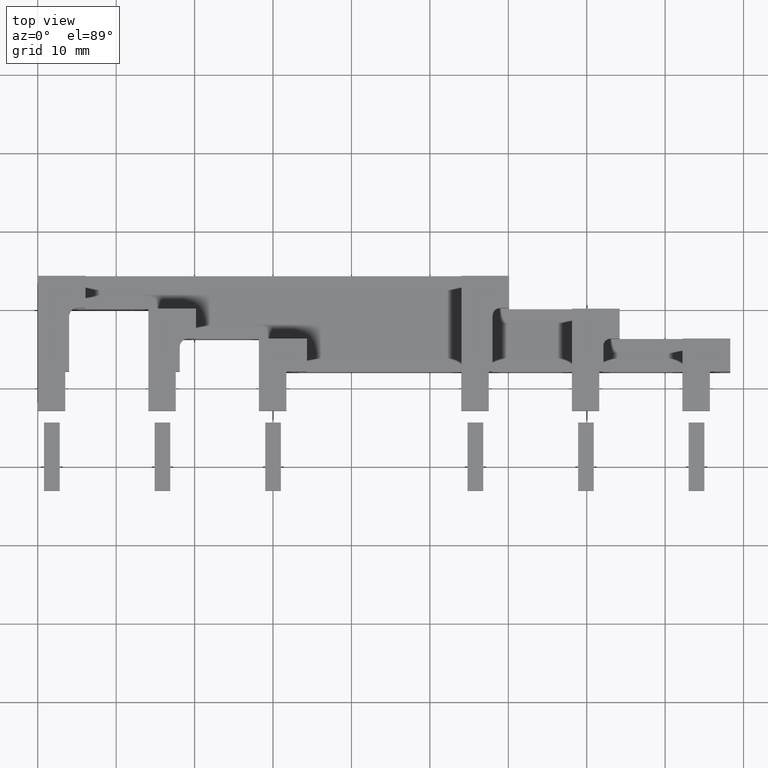
[diagram: clean part render]
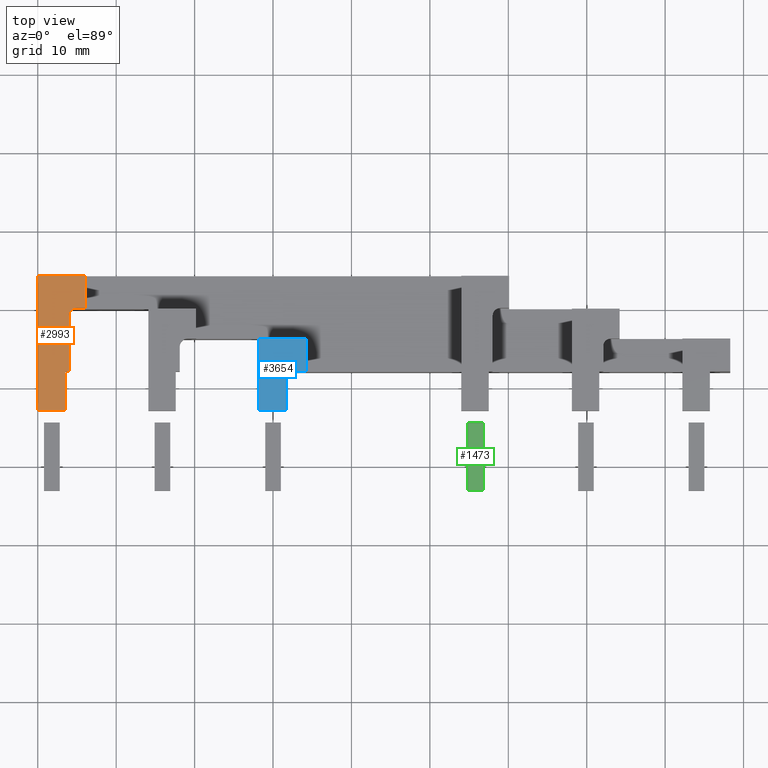
[diagram: same view with three faces highlighted in distinct colors, each labeled with its STEP entity id]
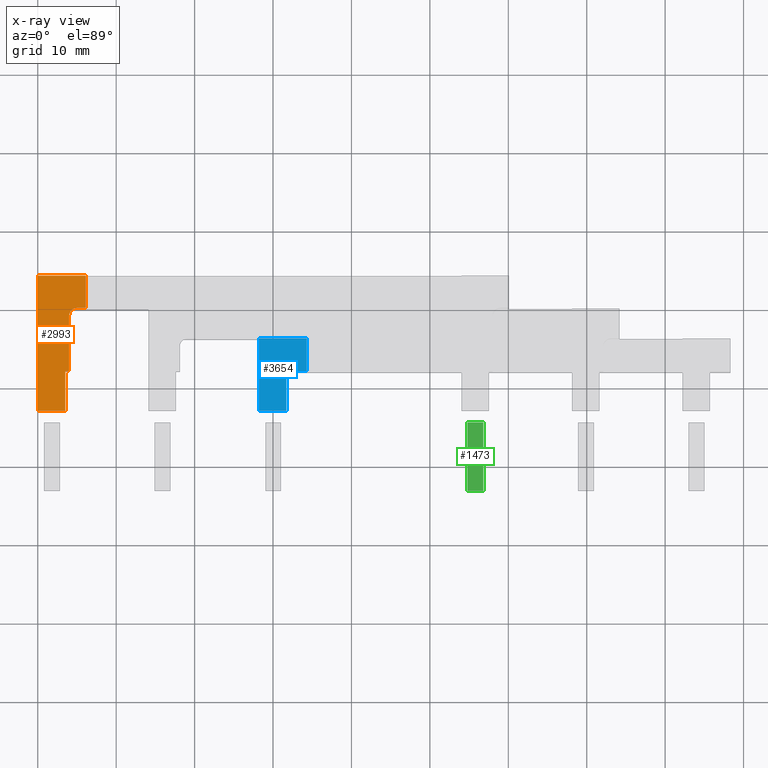
[diagram: x-ray of the same camera — body ghosted, the three highlighted faces saturated]
A machine part, top view with three faces highlighted in distinct colors.
The next image is the same camera in x-ray (body ghosted, the three faces saturated) — at least one of them is partly hidden behind the body in this view.
Their STEP definitions:

[orange] entity #2993 — the highlighted planar face has unit normal (0, 0, 1).
#2733=CARTESIAN_POINT('',(4.000000000000316,-7.999999999992044,108.09999999999218));
#2734=VERTEX_POINT('',#2733);
#2735=CARTESIAN_POINT('',(3.500000000000316,-7.999999999992285,108.09999999999215));
#2736=VERTEX_POINT('',#2735);
#2737=CARTESIAN_POINT('',(4.000000000000316,-7.999999999992047,108.09999999999214));
#2738=DIRECTION('',(-1.0,-4.760636E-013,2.842171E-014));
#2739=VECTOR('',#2738,0.5);
#2740=LINE('',#2737,#2739);
#2741=EDGE_CURVE('',#2734,#2736,#2740,.T.);
#2773=CARTESIAN_POINT('',(3.500000000000763,-12.999999999992003,108.09999999999218));
#2774=VERTEX_POINT('',#2773);
#2775=CARTESIAN_POINT('',(3.500000000000316,-7.999999999992286,108.09999999999218));
#2776=DIRECTION('',(0.0,-1.0,0.0));
#2777=VECTOR('',#2776,4.999999999999717);
#2778=LINE('',#2775,#2777);
#2779=EDGE_CURVE('',#2736,#2774,#2778,.T.);
#2804=CARTESIAN_POINT('',(3.090890E-013,-12.999999999991832,108.09999999999224));
#2805=VERTEX_POINT('',#2804);
#2806=CARTESIAN_POINT('',(3.500000000000766,-12.999999999991987,108.09999999999216));
#2807=DIRECTION('',(-1.0,0.0,0.0));
#2808=VECTOR('',#2807,3.500000000000457);
#2809=LINE('',#2806,#2808);
#2810=EDGE_CURVE('',#2774,#2805,#2809,.T.);
#2835=CARTESIAN_POINT('',(1.744997E-013,4.200000000007734,108.09999999999222));
#2836=VERTEX_POINT('',#2835);
#2837=CARTESIAN_POINT('',(3.082675E-013,-12.999999999991861,108.09999999999222));
#2838=DIRECTION('',(0.0,1.0,0.0));
#2839=VECTOR('',#2838,17.199999999999594);
#2840=LINE('',#2837,#2839);
#2841=EDGE_CURVE('',#2805,#2836,#2840,.T.);
#2866=CARTESIAN_POINT('',(6.099999999999845,4.200000000007862,108.09999999999209));
#2867=VERTEX_POINT('',#2866);
#2868=CARTESIAN_POINT('',(6.099999999999942,0.099999999999568,108.09999999999212));
#2869=VERTEX_POINT('',#2868);
#2870=CARTESIAN_POINT('',(6.099999999999842,4.200000000007877,108.09999999999212));
#2871=DIRECTION('',(0.0,-1.0,0.0));
#2872=VECTOR('',#2871,4.100000000008309);
#2873=LINE('',#2870,#2872);
#2874=EDGE_CURVE('',#2867,#2869,#2873,.T.);
#2897=CARTESIAN_POINT('',(5.000000000000147,0.09999999999954,108.09999999999215));
#2898=VERTEX_POINT('',#2897);
#2899=CARTESIAN_POINT('',(6.099999999999943,0.099999999999563,108.09999999999212));
#2900=DIRECTION('',(-1.0,0.0,0.0));
#2901=VECTOR('',#2900,1.099999999999796);
#2902=LINE('',#2899,#2901);
#2903=EDGE_CURVE('',#2869,#2898,#2902,.T.);
#2921=CARTESIAN_POINT('',(4.000000000000167,-0.900000000000461,108.09999999999218));
#2922=VERTEX_POINT('',#2921);
#2923=CARTESIAN_POINT('',(5.000000000000167,-0.900000000000461,108.09999999999214));
#2924=DIRECTION('',(1.068686E-014,-1.068686E-014,1.0));
#2925=DIRECTION('',(-0.707106781186552,0.707106781186543,1.511351E-014));
#2926=AXIS2_PLACEMENT_3D('',#2923,#2924,#2925);
#2927=CIRCLE('',#2926,1.000000000000001);
#2928=EDGE_CURVE('',#2898,#2922,#2927,.T.);
#2955=CARTESIAN_POINT('',(4.000000000000167,-0.90000000000046,108.09999999999218));
#2956=DIRECTION('',(0.0,-1.0,0.0));
#2957=VECTOR('',#2956,7.099999999991583);
#2958=LINE('',#2955,#2957);
#2959=EDGE_CURVE('',#2922,#2734,#2958,.T.);
#2972=CARTESIAN_POINT('',(2.3931872459422,-3.79385044009716,108.09999999999221));
#2973=DIRECTION('',(0.0,0.0,1.0));
#2974=DIRECTION('',(1.0,0.0,0.0));
#2975=AXIS2_PLACEMENT_3D('',#2972,#2973,#2974);
#2976=PLANE('',#2975);
#2977=ORIENTED_EDGE('',*,*,#2741,.F.);
#2978=ORIENTED_EDGE('',*,*,#2959,.F.);
#2979=ORIENTED_EDGE('',*,*,#2928,.F.);
#2980=ORIENTED_EDGE('',*,*,#2903,.F.);
#2981=ORIENTED_EDGE('',*,*,#2874,.F.);
#2982=CARTESIAN_POINT('',(1.758593E-013,4.200000000007749,108.09999999999222));
#2983=DIRECTION('',(1.0,0.0,0.0));
#2984=VECTOR('',#2983,6.099999999999669);
#2985=LINE('',#2982,#2984);
#2986=EDGE_CURVE('',#2836,#2867,#2985,.T.);
#2987=ORIENTED_EDGE('',*,*,#2986,.F.);
#2988=ORIENTED_EDGE('',*,*,#2841,.F.);
#2989=ORIENTED_EDGE('',*,*,#2810,.F.);
#2990=ORIENTED_EDGE('',*,*,#2779,.F.);
#2991=EDGE_LOOP('',(#2977,#2978,#2979,#2980,#2981,#2987,#2988,#2989,#2990));
#2992=FACE_OUTER_BOUND('',#2991,.T.);
#2993=ADVANCED_FACE('',(#2992),#2976,.T.);

[blue] entity #3654 — the highlighted planar face has unit normal (0, 0, -1).
#3478=CARTESIAN_POINT('',(28.199999999999946,-3.799999999999572,108.09999999999164));
#3479=VERTEX_POINT('',#3478);
#3480=CARTESIAN_POINT('',(34.299999999999983,-3.799999999999458,108.09999999999152));
#3481=VERTEX_POINT('',#3480);
#3482=CARTESIAN_POINT('',(28.199999999999946,-3.799999999999572,108.09999999999164));
#3483=DIRECTION('',(1.0,0.0,0.0));
#3484=VECTOR('',#3483,6.100000000000023);
#3485=LINE('',#3482,#3484);
#3486=EDGE_CURVE('',#3479,#3481,#3485,.T.);
#3509=CARTESIAN_POINT('',(34.300000000000068,-7.999999999999462,108.09999999999151));
#3510=VERTEX_POINT('',#3509);
#3511=CARTESIAN_POINT('',(34.299999999999983,-3.799999999999458,108.09999999999152));
#3512=DIRECTION('',(0.0,-1.0,0.0));
#3513=VECTOR('',#3512,4.200000000000005);
#3514=LINE('',#3511,#3513);
#3515=EDGE_CURVE('',#3481,#3510,#3514,.T.);
#3533=CARTESIAN_POINT('',(31.700000000000138,-7.999999999999519,108.09999999999158));
#3534=VERTEX_POINT('',#3533);
#3535=CARTESIAN_POINT('',(31.700000000000244,-12.999999999999519,108.09999999999157));
#3536=VERTEX_POINT('',#3535);
#3537=CARTESIAN_POINT('',(31.700000000000138,-7.999999999999519,108.09999999999158));
#3538=DIRECTION('',(0.0,-1.0,0.0));
#3539=VECTOR('',#3538,5.000000000000002);
#3540=LINE('',#3537,#3539);
#3541=EDGE_CURVE('',#3534,#3536,#3540,.T.);
#3573=CARTESIAN_POINT('',(28.200000000000138,-12.99999999999959,108.09999999999164));
#3574=VERTEX_POINT('',#3573);
#3575=CARTESIAN_POINT('',(31.700000000000244,-12.999999999999519,108.09999999999157));
#3576=DIRECTION('',(-1.0,0.0,0.0));
#3577=VECTOR('',#3576,3.500000000000114);
#3578=LINE('',#3575,#3577);
#3579=EDGE_CURVE('',#3536,#3574,#3578,.T.);
#3604=CARTESIAN_POINT('',(28.200000000000138,-12.99999999999959,108.09999999999164));
#3605=DIRECTION('',(0.0,1.0,0.0));
#3606=VECTOR('',#3605,9.200000000000005);
#3607=LINE('',#3604,#3606);
#3608=EDGE_CURVE('',#3574,#3479,#3607,.T.);
#3636=CARTESIAN_POINT('',(30.825163398692936,-7.975163398692332,108.09999999999161));
#3637=DIRECTION('',(0.0,0.0,-1.0));
#3638=DIRECTION('',(0.0,1.0,0.0));
#3639=AXIS2_PLACEMENT_3D('',#3636,#3637,#3638);
#3640=PLANE('',#3639);
#3641=ORIENTED_EDGE('',*,*,#3486,.F.);
#3642=ORIENTED_EDGE('',*,*,#3608,.F.);
#3643=ORIENTED_EDGE('',*,*,#3579,.F.);
#3644=ORIENTED_EDGE('',*,*,#3541,.F.);
#3645=CARTESIAN_POINT('',(34.300000000000068,-7.999999999999462,108.09999999999151));
#3646=DIRECTION('',(-1.0,0.0,0.0));
#3647=VECTOR('',#3646,2.599999999999909);
#3648=LINE('',#3645,#3647);
#3649=EDGE_CURVE('',#3510,#3534,#3648,.T.);
#3650=ORIENTED_EDGE('',*,*,#3649,.F.);
#3651=ORIENTED_EDGE('',*,*,#3515,.F.);
#3652=EDGE_LOOP('',(#3641,#3642,#3643,#3644,#3650,#3651));
#3653=FACE_OUTER_BOUND('',#3652,.T.);
#3654=ADVANCED_FACE('',(#3653),#3640,.F.);

[green] entity #1473 — the highlighted planar face has unit normal (0, 0, 1).
#1343=CARTESIAN_POINT('',(54.800000000000495,-23.199999999999484,107.19999999999109));
#1344=VERTEX_POINT('',#1343);
#1345=CARTESIAN_POINT('',(54.800000000000288,-14.49999999999935,107.19999999999109));
#1346=VERTEX_POINT('',#1345);
#1347=CARTESIAN_POINT('',(54.800000000000473,-23.199999999999513,107.19999999999109));
#1348=DIRECTION('',(0.0,1.0,0.0));
#1349=VECTOR('',#1348,8.700000000000163);
#1350=LINE('',#1347,#1349);
#1351=EDGE_CURVE('',#1344,#1346,#1350,.T.);
#1383=CARTESIAN_POINT('',(56.80000000000031,-14.499999999999291,107.19999999999104));
#1384=VERTEX_POINT('',#1383);
#1385=CARTESIAN_POINT('',(54.80000000000031,-14.499999999999334,107.19999999999108));
#1386=DIRECTION('',(1.0,0.0,0.0));
#1387=VECTOR('',#1386,2.0);
#1388=LINE('',#1385,#1387);
#1389=EDGE_CURVE('',#1346,#1384,#1388,.T.);
#1414=CARTESIAN_POINT('',(56.80000000000048,-23.199999999999466,107.19999999999104));
#1415=VERTEX_POINT('',#1414);
#1416=CARTESIAN_POINT('',(56.800000000000296,-14.499999999999305,107.19999999999104));
#1417=DIRECTION('',(0.0,-1.0,0.0));
#1418=VECTOR('',#1417,8.700000000000161);
#1419=LINE('',#1416,#1418);
#1420=EDGE_CURVE('',#1384,#1415,#1419,.T.);
#1445=CARTESIAN_POINT('',(56.800000000000495,-23.199999999999442,107.19999999999105));
#1446=DIRECTION('',(-1.0,0.0,0.0));
#1447=VECTOR('',#1446,2.0);
#1448=LINE('',#1445,#1447);
#1449=EDGE_CURVE('',#1415,#1344,#1448,.T.);
#1462=CARTESIAN_POINT('',(55.800000000000402,-18.849999999999387,107.19999999999104));
#1463=DIRECTION('',(0.0,0.0,1.0));
#1464=DIRECTION('',(1.0,0.0,0.0));
#1465=AXIS2_PLACEMENT_3D('',#1462,#1463,#1464);
#1466=PLANE('',#1465);
#1467=ORIENTED_EDGE('',*,*,#1351,.F.);
#1468=ORIENTED_EDGE('',*,*,#1449,.F.);
#1469=ORIENTED_EDGE('',*,*,#1420,.F.);
#1470=ORIENTED_EDGE('',*,*,#1389,.F.);
#1471=EDGE_LOOP('',(#1467,#1468,#1469,#1470));
#1472=FACE_OUTER_BOUND('',#1471,.T.);
#1473=ADVANCED_FACE('',(#1472),#1466,.T.);